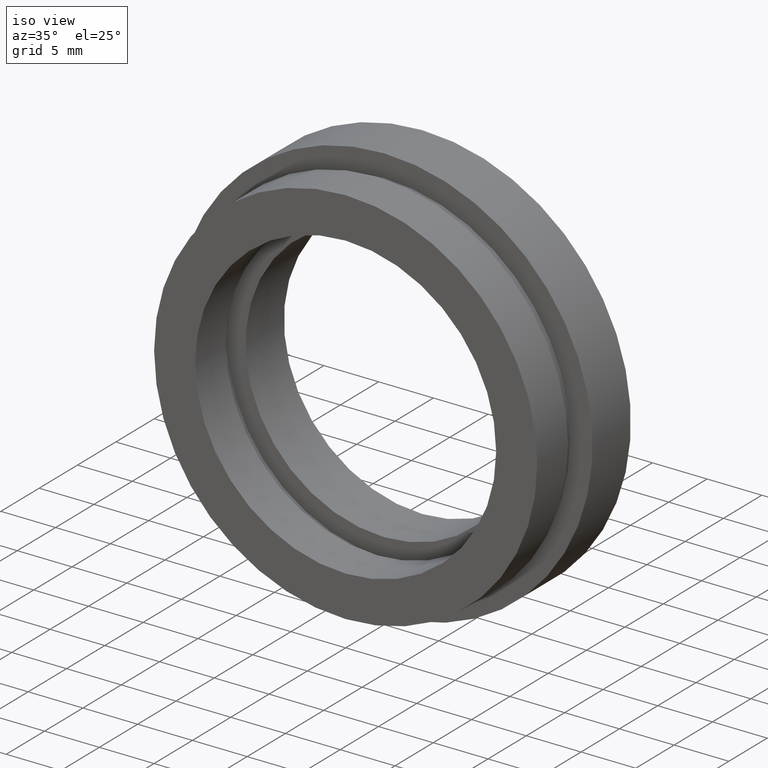
[diagram: clean part render]
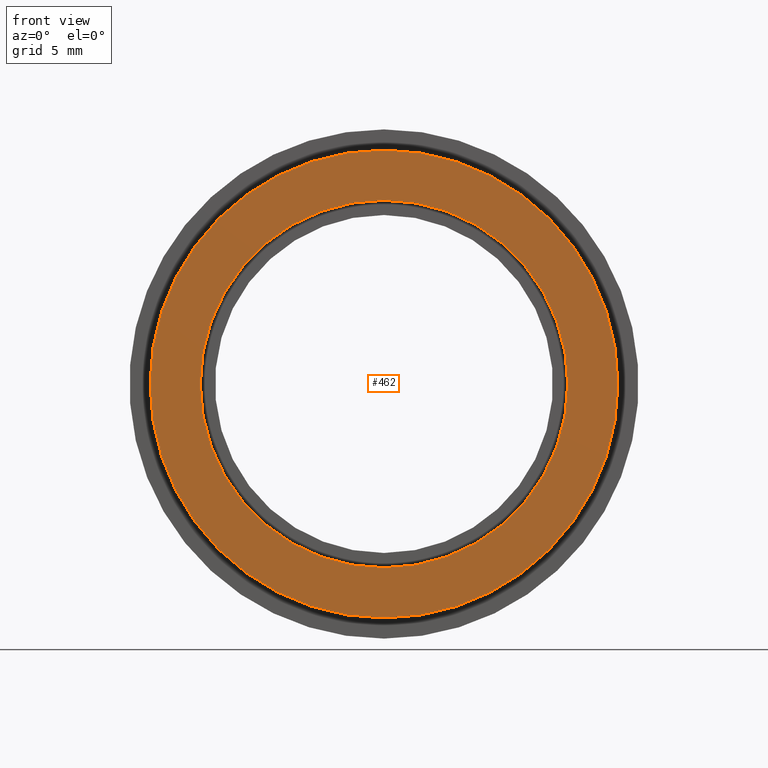
[diagram: tour spotlight — one face highlighted and labeled with its STEP entity id]
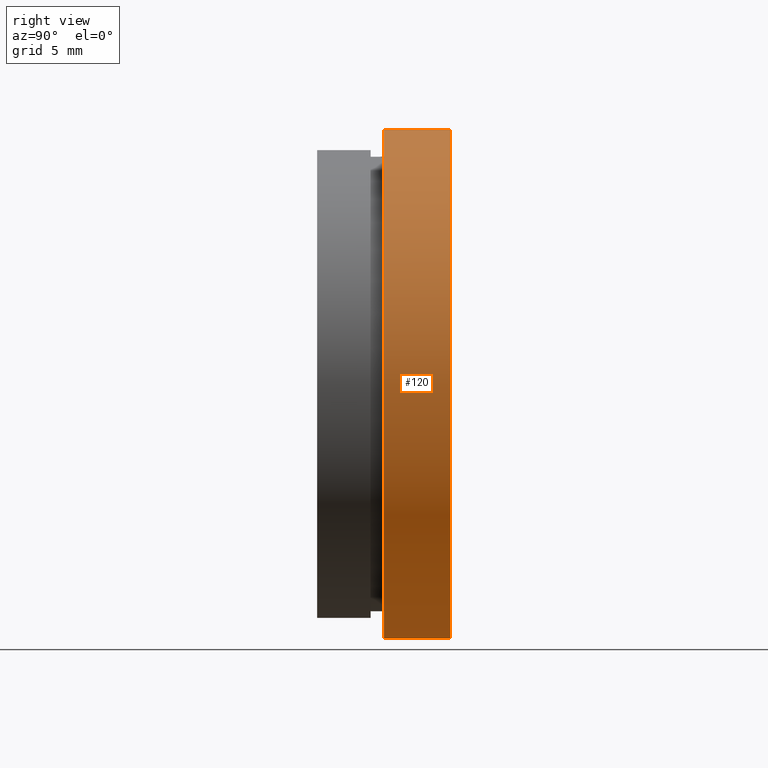
[diagram: tour spotlight — one face highlighted and labeled with its STEP entity id]
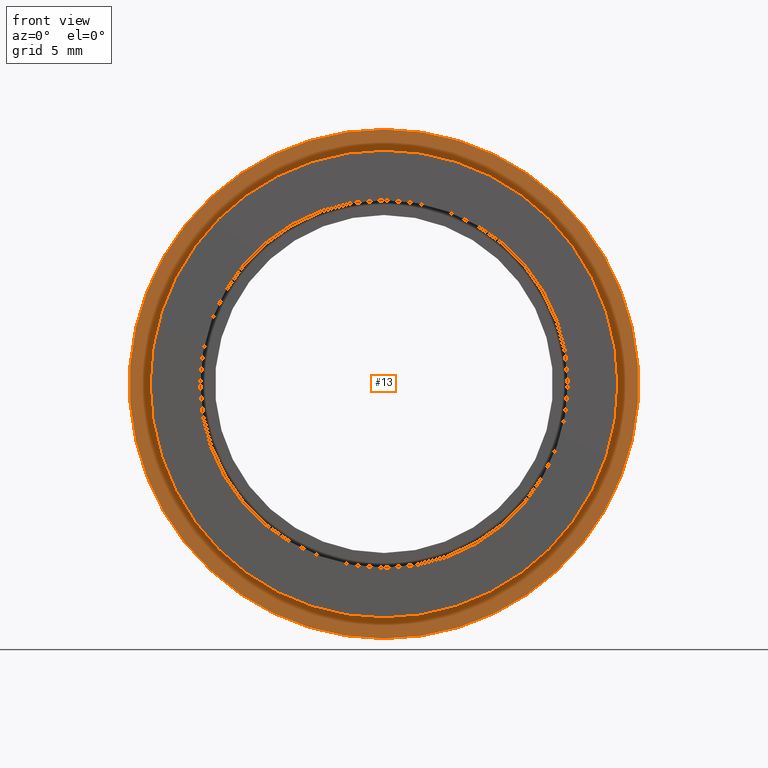
[diagram: tour spotlight — one face highlighted and labeled with its STEP entity id]
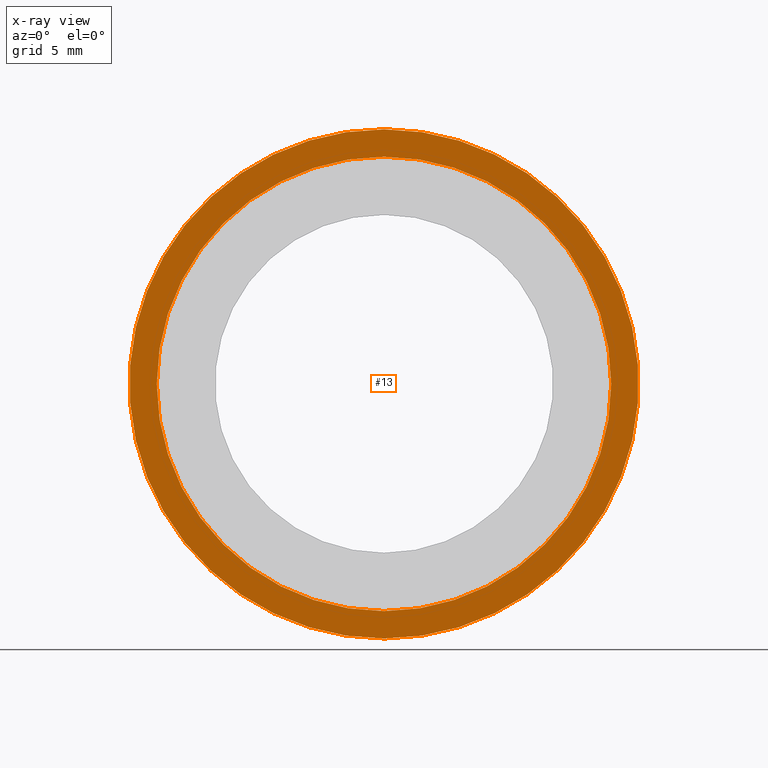
[diagram: x-ray of the same camera — body ghosted, this tour face saturated]
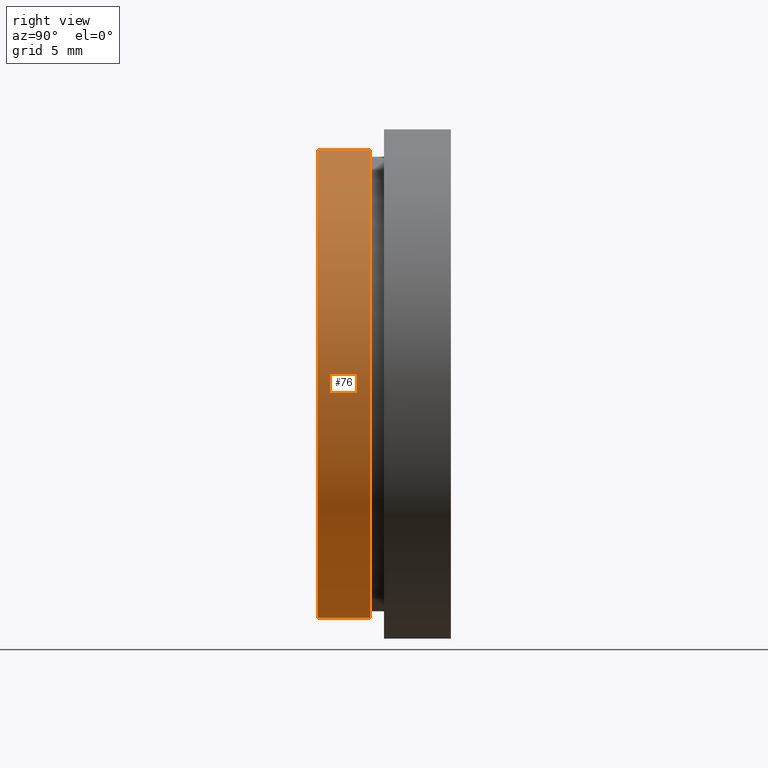
[diagram: tour spotlight — one face highlighted and labeled with its STEP entity id]
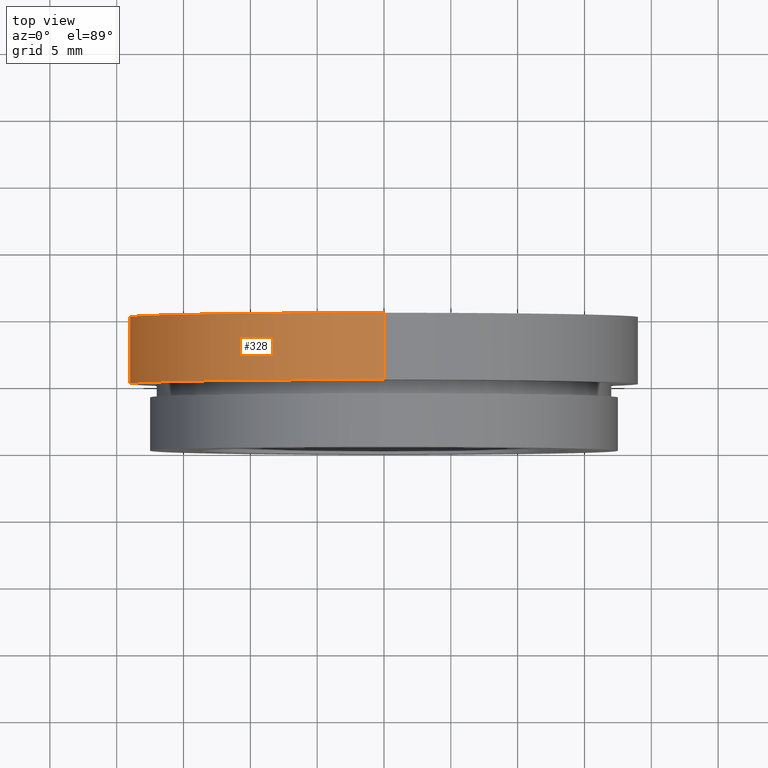
[diagram: tour spotlight — one face highlighted and labeled with its STEP entity id]
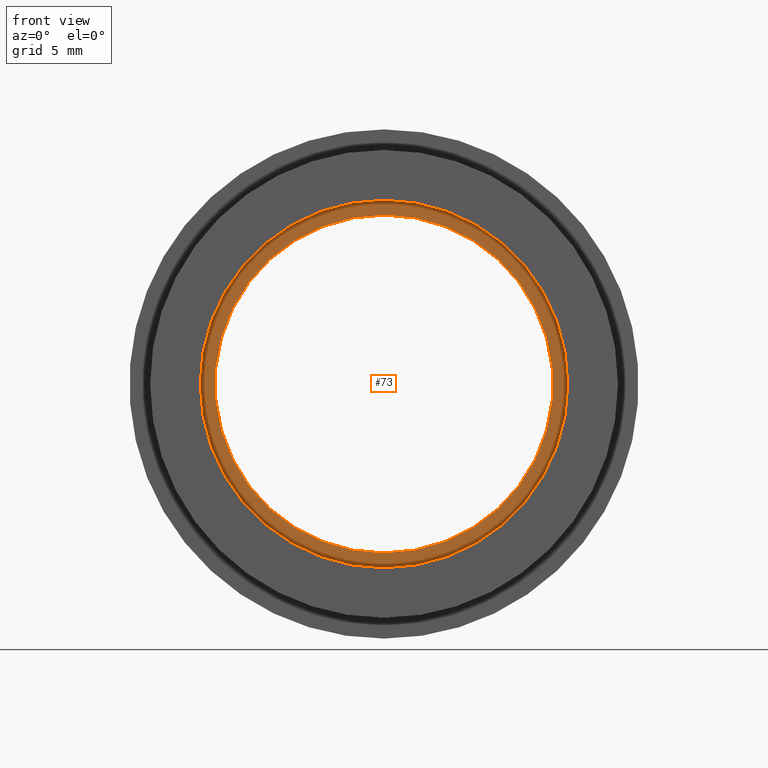
[diagram: tour spotlight — one face highlighted and labeled with its STEP entity id]
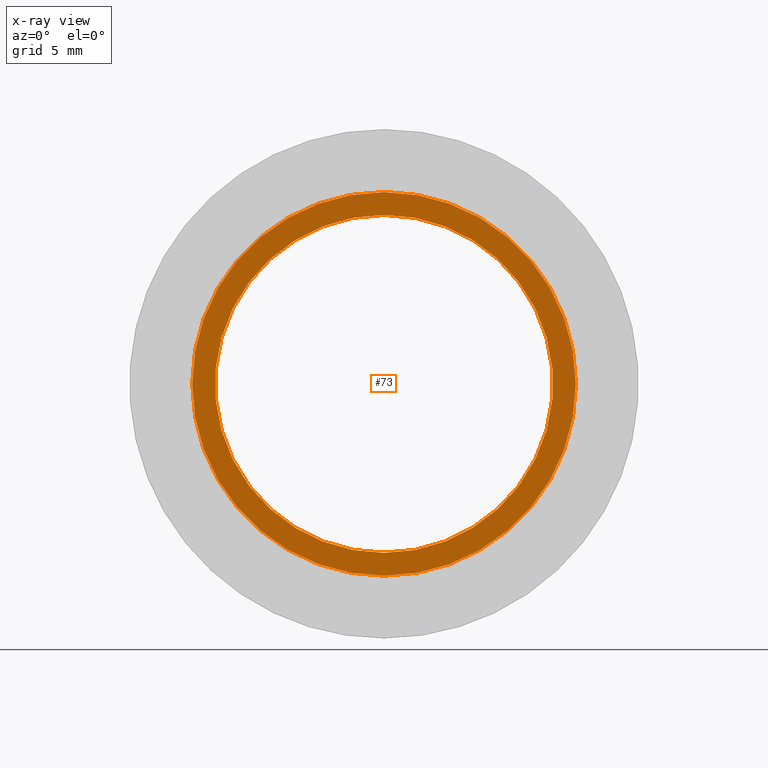
[diagram: x-ray of the same camera — body ghosted, this tour face saturated]
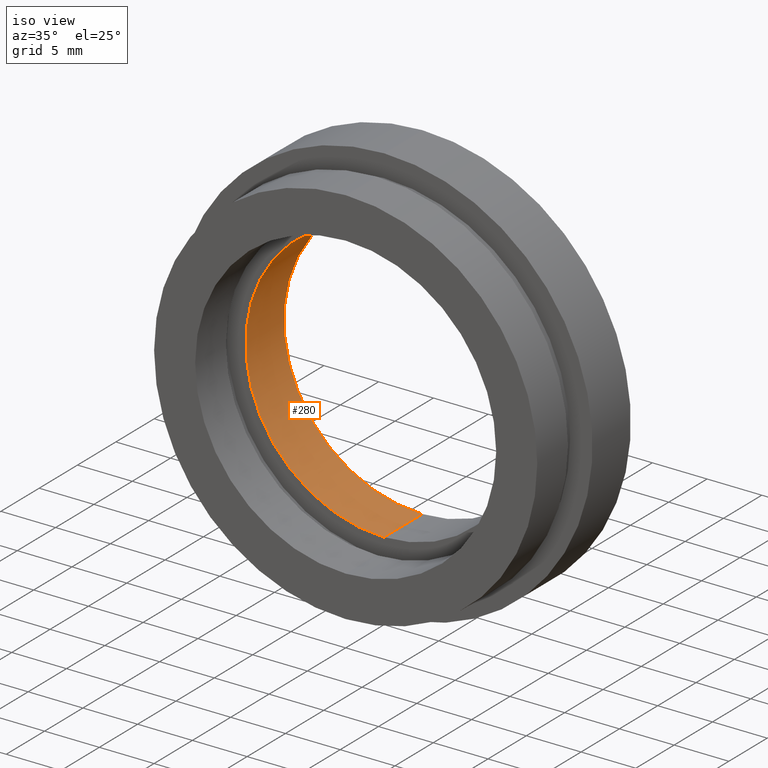
[diagram: tour spotlight — one face highlighted and labeled with its STEP entity id]
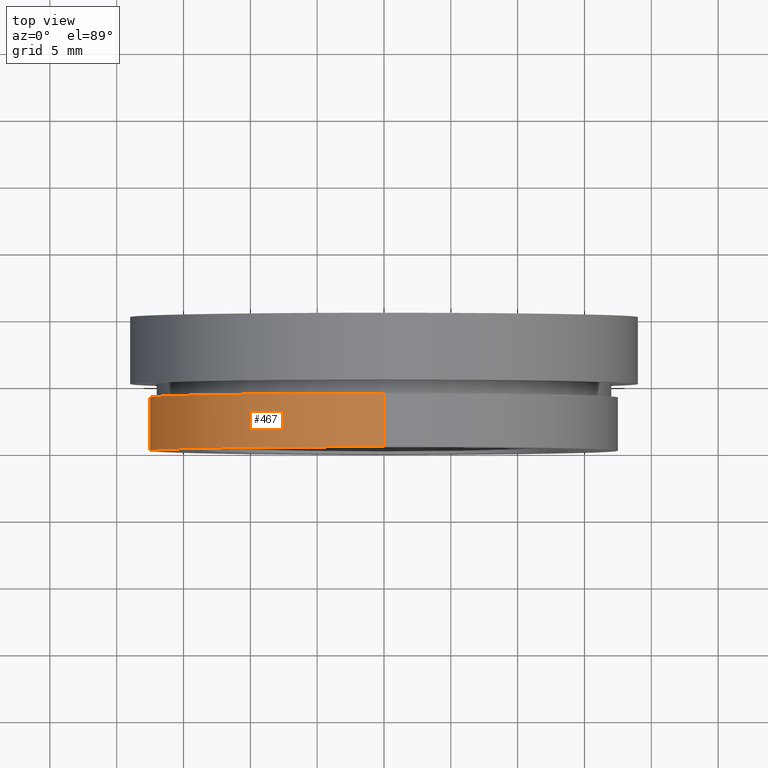
[diagram: tour spotlight — one face highlighted and labeled with its STEP entity id]
A machine part: a face-by-face anatomy tour. The part has 18 B-rep faces; the first image is the clean iso view, then the 8 largest visible faces are spotlighted one at a time (largest first), each with its STEP entity span.

Face 1 — front view, entity #462. In plain terms, the highlighted planar face has unit normal (-0, 1, 0).
Definition (entity closure, byte-faithful):
#48 = EDGE_CURVE ( 'NONE', #343, #203, #419, .T. ) ;
#67 = CARTESIAN_POINT ( 'NONE',  ( 0.0000000000000000000, -1.734723475976807100E-015, 0.0000000000000000000 ) ) ;
#68 = DIRECTION ( 'NONE',  ( 0.0000000000000000000, 0.0000000000000000000, 1.000000000000000000 ) ) ;
#69 = CARTESIAN_POINT ( 'NONE',  ( 0.0000000000000000000, 0.0000000000000000000, 0.0000000000000000000 ) ) ;
#92 = CARTESIAN_POINT ( 'NONE',  ( 0.0000000000000000000, -1.734723475976807100E-015, 13.75000000000000000 ) ) ;
#97 = FACE_BOUND ( 'NONE', #320, .T. ) ;
#118 = EDGE_LOOP ( 'NONE', ( #378, #192 ) ) ;
#129 = AXIS2_PLACEMENT_3D ( 'NONE', #160, #493, #208 ) ;
#142 = VERTEX_POINT ( 'NONE', #309 ) ;
#150 = EDGE_CURVE ( 'NONE', #142, #157, #471, .T. ) ;
#157 = VERTEX_POINT ( 'NONE', #601 ) ;
#160 = CARTESIAN_POINT ( 'NONE',  ( 17.50000000000000000, -4.439344646909156000E-016, 0.0000000000000000000 ) ) ;
#190 = DIRECTION ( 'NONE',  ( -0.0000000000000000000, 1.000000000000000000, -0.0000000000000000000 ) ) ;
#192 = ORIENTED_EDGE ( 'NONE', *, *, #248, .F. ) ;
#203 = VERTEX_POINT ( 'NONE', #92 ) ;
#208 = DIRECTION ( 'NONE',  ( 0.0000000000000000000, 0.0000000000000000000, 1.000000000000000000 ) ) ;
#248 = EDGE_CURVE ( 'NONE', #157, #142, #298, .T. ) ;
#249 = ORIENTED_EDGE ( 'NONE', *, *, #48, .T. ) ;
#256 = AXIS2_PLACEMENT_3D ( 'NONE', #69, #374, #68 ) ;
#258 = CARTESIAN_POINT ( 'NONE',  ( 0.0000000000000000000, 0.0000000000000000000, 0.0000000000000000000 ) ) ;
#265 = DIRECTION ( 'NONE',  ( -0.0000000000000000000, 1.000000000000000000, -0.0000000000000000000 ) ) ;
#270 = DIRECTION ( 'NONE',  ( 0.0000000000000000000, 0.0000000000000000000, 1.000000000000000000 ) ) ;
#298 = CIRCLE ( 'NONE', #388, 17.50000000000000000 ) ;
#309 = CARTESIAN_POINT ( 'NONE',  ( 0.0000000000000000000, 0.0000000000000000000, 17.50000000000000000 ) ) ;
#320 = EDGE_LOOP ( 'NONE', ( #326, #249 ) ) ;
#326 = ORIENTED_EDGE ( 'NONE', *, *, #585, .T. ) ;
#332 = CIRCLE ( 'NONE', #458, 13.75000000000000000 ) ;
#334 = DIRECTION ( 'NONE',  ( 0.0000000000000000000, 0.0000000000000000000, 1.000000000000000000 ) ) ;
#343 = VERTEX_POINT ( 'NONE', #486 ) ;
#374 = DIRECTION ( 'NONE',  ( -0.0000000000000000000, 1.000000000000000000, -0.0000000000000000000 ) ) ;
#378 = ORIENTED_EDGE ( 'NONE', *, *, #150, .F. ) ;
#388 = AXIS2_PLACEMENT_3D ( 'NONE', #258, #265, #270 ) ;
#419 = CIRCLE ( 'NONE', #527, 13.75000000000000000 ) ;
#441 = FACE_OUTER_BOUND ( 'NONE', #118, .T. ) ;
#451 = DIRECTION ( 'NONE',  ( -0.0000000000000000000, 1.000000000000000000, -0.0000000000000000000 ) ) ;
#458 = AXIS2_PLACEMENT_3D ( 'NONE', #67, #451, #334 ) ;
#462 = ADVANCED_FACE ( 'NONE', ( #441, #97 ), #476, .F. ) ;
#471 = CIRCLE ( 'NONE', #256, 17.50000000000000000 ) ;
#476 = PLANE ( 'NONE',  #129 ) ;
#486 = CARTESIAN_POINT ( 'NONE',  ( 1.683889348827610900E-015, -1.734723475976807100E-015, -13.75000000000000000 ) ) ;
#493 = DIRECTION ( 'NONE',  ( -0.0000000000000000000, 1.000000000000000000, 0.0000000000000000000 ) ) ;
#527 = AXIS2_PLACEMENT_3D ( 'NONE', #573, #190, #562 ) ;
#562 = DIRECTION ( 'NONE',  ( 0.0000000000000000000, 0.0000000000000000000, 1.000000000000000000 ) ) ;
#573 = CARTESIAN_POINT ( 'NONE',  ( 0.0000000000000000000, -1.734723475976807100E-015, 0.0000000000000000000 ) ) ;
#585 = EDGE_CURVE ( 'NONE', #203, #343, #332, .T. ) ;
#601 = CARTESIAN_POINT ( 'NONE',  ( 2.143131898507868200E-015, 0.0000000000000000000, -17.50000000000000000 ) ) ;

Face 2 — right view, entity #120. In plain terms, the highlighted cylindrical surface (partial cylindrical patch) has radius 19.05 mm, axis along (-0, 1, -0).
Definition (entity closure, byte-faithful):
#3 = ORIENTED_EDGE ( 'NONE', *, *, #417, .T. ) ;
#32 = DIRECTION ( 'NONE',  ( -0.0000000000000000000, 1.000000000000000000, -0.0000000000000000000 ) ) ;
#37 = CARTESIAN_POINT ( 'NONE',  ( 0.0000000000000000000, 13.74468085106383300, 19.05000000000000400 ) ) ;
#39 = CARTESIAN_POINT ( 'NONE',  ( 2.332952152375708400E-015, 9.999999999999998200, -19.05000000000000400 ) ) ;
#60 = DIRECTION ( 'NONE',  ( 0.0000000000000000000, 0.0000000000000000000, 1.000000000000000000 ) ) ;
#62 = EDGE_LOOP ( 'NONE', ( #3, #165, #311, #126 ) ) ;
#77 = FACE_OUTER_BOUND ( 'NONE', #62, .T. ) ;
#88 = VERTEX_POINT ( 'NONE', #39 ) ;
#109 = DIRECTION ( 'NONE',  ( -0.0000000000000000000, 1.000000000000000000, -0.0000000000000000000 ) ) ;
#120 = ADVANCED_FACE ( 'NONE', ( #77 ), #323, .T. ) ;
#126 = ORIENTED_EDGE ( 'NONE', *, *, #341, .F. ) ;
#144 = VERTEX_POINT ( 'NONE', #255 ) ;
#165 = ORIENTED_EDGE ( 'NONE', *, *, #346, .T. ) ;
#198 = DIRECTION ( 'NONE',  ( -0.0000000000000000000, 1.000000000000000000, -0.0000000000000000000 ) ) ;
#229 = CIRCLE ( 'NONE', #408, 19.05000000000000400 ) ;
#254 = CARTESIAN_POINT ( 'NONE',  ( 0.0000000000000000000, 5.000000000000000900, 0.0000000000000000000 ) ) ;
#255 = CARTESIAN_POINT ( 'NONE',  ( 2.332952152375708400E-015, 5.000000000000000900, -19.05000000000000400 ) ) ;
#259 = DIRECTION ( 'NONE',  ( -0.0000000000000000000, 1.000000000000000000, -0.0000000000000000000 ) ) ;
#277 = VECTOR ( 'NONE', #259, 1000.000000000000000 ) ;
#311 = ORIENTED_EDGE ( 'NONE', *, *, #551, .F. ) ;
#323 = CYLINDRICAL_SURFACE ( 'NONE', #556, 19.05000000000000400 ) ;
#341 = EDGE_CURVE ( 'NONE', #445, #429, #358, .T. ) ;
#346 = EDGE_CURVE ( 'NONE', #144, #88, #409, .T. ) ;
#350 = CARTESIAN_POINT ( 'NONE',  ( 2.332952152375708400E-015, 13.74468085106383300, -19.05000000000000400 ) ) ;
#358 = LINE ( 'NONE', #37, #372 ) ;
#372 = VECTOR ( 'NONE', #198, 1000.000000000000000 ) ;
#391 = CARTESIAN_POINT ( 'NONE',  ( 0.0000000000000000000, 9.999999999999998200, 0.0000000000000000000 ) ) ;
#408 = AXIS2_PLACEMENT_3D ( 'NONE', #254, #418, #468 ) ;
#409 = LINE ( 'NONE', #350, #277 ) ;
#417 = EDGE_CURVE ( 'NONE', #445, #144, #229, .T. ) ;
#418 = DIRECTION ( 'NONE',  ( -0.0000000000000000000, 1.000000000000000000, -0.0000000000000000000 ) ) ;
#425 = CARTESIAN_POINT ( 'NONE',  ( 0.0000000000000000000, 13.74468085106383300, 0.0000000000000000000 ) ) ;
#429 = VERTEX_POINT ( 'NONE', #502 ) ;
#445 = VERTEX_POINT ( 'NONE', #616 ) ;
#468 = DIRECTION ( 'NONE',  ( 0.0000000000000000000, 0.0000000000000000000, 1.000000000000000000 ) ) ;
#489 = DIRECTION ( 'NONE',  ( 0.0000000000000000000, 0.0000000000000000000, 1.000000000000000000 ) ) ;
#490 = AXIS2_PLACEMENT_3D ( 'NONE', #391, #109, #60 ) ;
#502 = CARTESIAN_POINT ( 'NONE',  ( 0.0000000000000000000, 9.999999999999998200, 19.05000000000000400 ) ) ;
#536 = CIRCLE ( 'NONE', #490, 19.05000000000000400 ) ;
#551 = EDGE_CURVE ( 'NONE', #429, #88, #536, .T. ) ;
#556 = AXIS2_PLACEMENT_3D ( 'NONE', #425, #32, #489 ) ;
#616 = CARTESIAN_POINT ( 'NONE',  ( 0.0000000000000000000, 5.000000000000000900, 19.05000000000000400 ) ) ;

Face 3 — front view, entity #13. An x-ray twin of the same camera follows (body ghosted, this face saturated) — the face is partly hidden behind the body. In plain terms, the highlighted planar face has unit normal (-0, 1, 0).
Definition (entity closure, byte-faithful):
#13 = ADVANCED_FACE ( 'NONE', ( #612, #594 ), #385, .F. ) ;
#19 = CARTESIAN_POINT ( 'NONE',  ( 0.0000000000000000000, 5.000000000000000900, 0.0000000000000000000 ) ) ;
#22 = DIRECTION ( 'NONE',  ( 0.0000000000000000000, 0.0000000000000000000, 1.000000000000000000 ) ) ;
#33 = VERTEX_POINT ( 'NONE', #484 ) ;
#52 = AXIS2_PLACEMENT_3D ( 'NONE', #19, #522, #22 ) ;
#82 = EDGE_LOOP ( 'NONE', ( #456, #415 ) ) ;
#93 = AXIS2_PLACEMENT_3D ( 'NONE', #567, #121, #613 ) ;
#102 = EDGE_CURVE ( 'NONE', #188, #33, #200, .T. ) ;
#121 = DIRECTION ( 'NONE',  ( -0.0000000000000000000, 1.000000000000000000, -0.0000000000000000000 ) ) ;
#144 = VERTEX_POINT ( 'NONE', #255 ) ;
#149 = ORIENTED_EDGE ( 'NONE', *, *, #102, .T. ) ;
#188 = VERTEX_POINT ( 'NONE', #274 ) ;
#191 = DIRECTION ( 'NONE',  ( -0.0000000000000000000, 1.000000000000000000, 0.0000000000000000000 ) ) ;
#200 = CIRCLE ( 'NONE', #52, 17.00000000000000000 ) ;
#205 = AXIS2_PLACEMENT_3D ( 'NONE', #495, #191, #473 ) ;
#213 = ORIENTED_EDGE ( 'NONE', *, *, #251, .T. ) ;
#229 = CIRCLE ( 'NONE', #408, 19.05000000000000400 ) ;
#251 = EDGE_CURVE ( 'NONE', #33, #188, #611, .T. ) ;
#254 = CARTESIAN_POINT ( 'NONE',  ( 0.0000000000000000000, 5.000000000000000900, 0.0000000000000000000 ) ) ;
#255 = CARTESIAN_POINT ( 'NONE',  ( 2.332952152375708400E-015, 5.000000000000000900, -19.05000000000000400 ) ) ;
#274 = CARTESIAN_POINT ( 'NONE',  ( 2.081899558550500300E-015, 5.000000000000000900, -17.00000000000000000 ) ) ;
#296 = EDGE_LOOP ( 'NONE', ( #213, #149 ) ) ;
#297 = DIRECTION ( 'NONE',  ( -0.0000000000000000000, 1.000000000000000000, -0.0000000000000000000 ) ) ;
#312 = EDGE_CURVE ( 'NONE', #144, #445, #506, .T. ) ;
#385 = PLANE ( 'NONE',  #205 ) ;
#403 = CARTESIAN_POINT ( 'NONE',  ( 0.0000000000000000000, 5.000000000000000900, 0.0000000000000000000 ) ) ;
#408 = AXIS2_PLACEMENT_3D ( 'NONE', #254, #418, #468 ) ;
#415 = ORIENTED_EDGE ( 'NONE', *, *, #312, .F. ) ;
#417 = EDGE_CURVE ( 'NONE', #445, #144, #229, .T. ) ;
#418 = DIRECTION ( 'NONE',  ( -0.0000000000000000000, 1.000000000000000000, -0.0000000000000000000 ) ) ;
#432 = AXIS2_PLACEMENT_3D ( 'NONE', #403, #297, #528 ) ;
#445 = VERTEX_POINT ( 'NONE', #616 ) ;
#456 = ORIENTED_EDGE ( 'NONE', *, *, #417, .F. ) ;
#468 = DIRECTION ( 'NONE',  ( 0.0000000000000000000, 0.0000000000000000000, 1.000000000000000000 ) ) ;
#473 = DIRECTION ( 'NONE',  ( 0.0000000000000000000, 0.0000000000000000000, 1.000000000000000000 ) ) ;
#484 = CARTESIAN_POINT ( 'NONE',  ( 0.0000000000000000000, 5.000000000000000900, 17.00000000000000000 ) ) ;
#495 = CARTESIAN_POINT ( 'NONE',  ( 19.05000000000000400, 5.000000000000000000, 0.0000000000000000000 ) ) ;
#506 = CIRCLE ( 'NONE', #93, 19.05000000000000400 ) ;
#522 = DIRECTION ( 'NONE',  ( -0.0000000000000000000, 1.000000000000000000, -0.0000000000000000000 ) ) ;
#528 = DIRECTION ( 'NONE',  ( 0.0000000000000000000, 0.0000000000000000000, 1.000000000000000000 ) ) ;
#567 = CARTESIAN_POINT ( 'NONE',  ( 0.0000000000000000000, 5.000000000000000900, 0.0000000000000000000 ) ) ;
#594 = FACE_BOUND ( 'NONE', #296, .T. ) ;
#611 = CIRCLE ( 'NONE', #432, 17.00000000000000000 ) ;
#612 = FACE_OUTER_BOUND ( 'NONE', #82, .T. ) ;
#613 = DIRECTION ( 'NONE',  ( 0.0000000000000000000, 0.0000000000000000000, 1.000000000000000000 ) ) ;
#616 = CARTESIAN_POINT ( 'NONE',  ( 0.0000000000000000000, 5.000000000000000900, 19.05000000000000400 ) ) ;

Face 4 — right view, entity #76. In plain terms, the highlighted cylindrical surface (partial cylindrical patch) has radius 17.5 mm, axis along (-0, 1, -0).
Definition (entity closure, byte-faithful):
#4 = EDGE_CURVE ( 'NONE', #142, #464, #544, .T. ) ;
#23 = ORIENTED_EDGE ( 'NONE', *, *, #577, .T. ) ;
#34 = AXIS2_PLACEMENT_3D ( 'NONE', #189, #366, #412 ) ;
#51 = CIRCLE ( 'NONE', #446, 17.50000000000000000 ) ;
#68 = DIRECTION ( 'NONE',  ( 0.0000000000000000000, 0.0000000000000000000, 1.000000000000000000 ) ) ;
#69 = CARTESIAN_POINT ( 'NONE',  ( 0.0000000000000000000, 0.0000000000000000000, 0.0000000000000000000 ) ) ;
#72 = ORIENTED_EDGE ( 'NONE', *, *, #4, .F. ) ;
#76 = ADVANCED_FACE ( 'NONE', ( #352 ), #325, .T. ) ;
#104 = CARTESIAN_POINT ( 'NONE',  ( 0.0000000000000000000, 4.000000000000000000, 0.0000000000000000000 ) ) ;
#107 = VERTEX_POINT ( 'NONE', #171 ) ;
#124 = CARTESIAN_POINT ( 'NONE',  ( 2.143131898507868200E-015, 13.74468085106383300, -17.50000000000000000 ) ) ;
#142 = VERTEX_POINT ( 'NONE', #309 ) ;
#150 = EDGE_CURVE ( 'NONE', #142, #157, #471, .T. ) ;
#157 = VERTEX_POINT ( 'NONE', #601 ) ;
#171 = CARTESIAN_POINT ( 'NONE',  ( 2.143131898507868200E-015, 4.000000000000000000, -17.50000000000000000 ) ) ;
#189 = CARTESIAN_POINT ( 'NONE',  ( 0.0000000000000000000, 13.74468085106383300, 0.0000000000000000000 ) ) ;
#194 = VECTOR ( 'NONE', #599, 1000.000000000000000 ) ;
#218 = ORIENTED_EDGE ( 'NONE', *, *, #150, .T. ) ;
#233 = ORIENTED_EDGE ( 'NONE', *, *, #523, .F. ) ;
#235 = DIRECTION ( 'NONE',  ( 0.0000000000000000000, 0.0000000000000000000, 1.000000000000000000 ) ) ;
#256 = AXIS2_PLACEMENT_3D ( 'NONE', #69, #374, #68 ) ;
#293 = CARTESIAN_POINT ( 'NONE',  ( 0.0000000000000000000, 13.74468085106383300, 17.50000000000000000 ) ) ;
#309 = CARTESIAN_POINT ( 'NONE',  ( 0.0000000000000000000, 0.0000000000000000000, 17.50000000000000000 ) ) ;
#325 = CYLINDRICAL_SURFACE ( 'NONE', #34, 17.50000000000000000 ) ;
#352 = FACE_OUTER_BOUND ( 'NONE', #380, .T. ) ;
#366 = DIRECTION ( 'NONE',  ( -0.0000000000000000000, 1.000000000000000000, -0.0000000000000000000 ) ) ;
#374 = DIRECTION ( 'NONE',  ( -0.0000000000000000000, 1.000000000000000000, -0.0000000000000000000 ) ) ;
#380 = EDGE_LOOP ( 'NONE', ( #218, #23, #233, #72 ) ) ;
#395 = DIRECTION ( 'NONE',  ( -0.0000000000000000000, 1.000000000000000000, -0.0000000000000000000 ) ) ;
#412 = DIRECTION ( 'NONE',  ( 0.0000000000000000000, 0.0000000000000000000, 1.000000000000000000 ) ) ;
#439 = CARTESIAN_POINT ( 'NONE',  ( 0.0000000000000000000, 4.000000000000000000, 17.50000000000000000 ) ) ;
#446 = AXIS2_PLACEMENT_3D ( 'NONE', #104, #474, #235 ) ;
#464 = VERTEX_POINT ( 'NONE', #439 ) ;
#471 = CIRCLE ( 'NONE', #256, 17.50000000000000000 ) ;
#474 = DIRECTION ( 'NONE',  ( -0.0000000000000000000, 1.000000000000000000, -0.0000000000000000000 ) ) ;
#515 = LINE ( 'NONE', #124, #524 ) ;
#523 = EDGE_CURVE ( 'NONE', #464, #107, #51, .T. ) ;
#524 = VECTOR ( 'NONE', #395, 1000.000000000000000 ) ;
#544 = LINE ( 'NONE', #293, #194 ) ;
#577 = EDGE_CURVE ( 'NONE', #157, #107, #515, .T. ) ;
#599 = DIRECTION ( 'NONE',  ( -0.0000000000000000000, 1.000000000000000000, -0.0000000000000000000 ) ) ;
#601 = CARTESIAN_POINT ( 'NONE',  ( 2.143131898507868200E-015, 0.0000000000000000000, -17.50000000000000000 ) ) ;

Face 5 — top view, entity #328. In plain terms, the highlighted cylindrical surface (partial cylindrical patch) has radius 19.05 mm, axis along (-0, 1, -0).
Definition (entity closure, byte-faithful):
#17 = EDGE_CURVE ( 'NONE', #88, #429, #117, .T. ) ;
#35 = DIRECTION ( 'NONE',  ( -0.0000000000000000000, 1.000000000000000000, -0.0000000000000000000 ) ) ;
#37 = CARTESIAN_POINT ( 'NONE',  ( 0.0000000000000000000, 13.74468085106383300, 19.05000000000000400 ) ) ;
#38 = DIRECTION ( 'NONE',  ( 0.0000000000000000000, 0.0000000000000000000, 1.000000000000000000 ) ) ;
#39 = CARTESIAN_POINT ( 'NONE',  ( 2.332952152375708400E-015, 9.999999999999998200, -19.05000000000000400 ) ) ;
#59 = CARTESIAN_POINT ( 'NONE',  ( 0.0000000000000000000, 9.999999999999998200, 0.0000000000000000000 ) ) ;
#88 = VERTEX_POINT ( 'NONE', #39 ) ;
#93 = AXIS2_PLACEMENT_3D ( 'NONE', #567, #121, #613 ) ;
#94 = DIRECTION ( 'NONE',  ( 0.0000000000000000000, 0.0000000000000000000, 1.000000000000000000 ) ) ;
#117 = CIRCLE ( 'NONE', #139, 19.05000000000000400 ) ;
#121 = DIRECTION ( 'NONE',  ( -0.0000000000000000000, 1.000000000000000000, -0.0000000000000000000 ) ) ;
#139 = AXIS2_PLACEMENT_3D ( 'NONE', #59, #35, #38 ) ;
#144 = VERTEX_POINT ( 'NONE', #255 ) ;
#198 = DIRECTION ( 'NONE',  ( -0.0000000000000000000, 1.000000000000000000, -0.0000000000000000000 ) ) ;
#234 = ORIENTED_EDGE ( 'NONE', *, *, #312, .T. ) ;
#255 = CARTESIAN_POINT ( 'NONE',  ( 2.332952152375708400E-015, 5.000000000000000900, -19.05000000000000400 ) ) ;
#259 = DIRECTION ( 'NONE',  ( -0.0000000000000000000, 1.000000000000000000, -0.0000000000000000000 ) ) ;
#264 = AXIS2_PLACEMENT_3D ( 'NONE', #575, #448, #94 ) ;
#277 = VECTOR ( 'NONE', #259, 1000.000000000000000 ) ;
#312 = EDGE_CURVE ( 'NONE', #144, #445, #506, .T. ) ;
#324 = CYLINDRICAL_SURFACE ( 'NONE', #264, 19.05000000000000400 ) ;
#328 = ADVANCED_FACE ( 'NONE', ( #424 ), #324, .T. ) ;
#341 = EDGE_CURVE ( 'NONE', #445, #429, #358, .T. ) ;
#346 = EDGE_CURVE ( 'NONE', #144, #88, #409, .T. ) ;
#348 = ORIENTED_EDGE ( 'NONE', *, *, #346, .F. ) ;
#350 = CARTESIAN_POINT ( 'NONE',  ( 2.332952152375708400E-015, 13.74468085106383300, -19.05000000000000400 ) ) ;
#358 = LINE ( 'NONE', #37, #372 ) ;
#369 = EDGE_LOOP ( 'NONE', ( #348, #234, #578, #582 ) ) ;
#372 = VECTOR ( 'NONE', #198, 1000.000000000000000 ) ;
#409 = LINE ( 'NONE', #350, #277 ) ;
#424 = FACE_OUTER_BOUND ( 'NONE', #369, .T. ) ;
#429 = VERTEX_POINT ( 'NONE', #502 ) ;
#445 = VERTEX_POINT ( 'NONE', #616 ) ;
#448 = DIRECTION ( 'NONE',  ( -0.0000000000000000000, 1.000000000000000000, -0.0000000000000000000 ) ) ;
#502 = CARTESIAN_POINT ( 'NONE',  ( 0.0000000000000000000, 9.999999999999998200, 19.05000000000000400 ) ) ;
#506 = CIRCLE ( 'NONE', #93, 19.05000000000000400 ) ;
#567 = CARTESIAN_POINT ( 'NONE',  ( 0.0000000000000000000, 5.000000000000000900, 0.0000000000000000000 ) ) ;
#575 = CARTESIAN_POINT ( 'NONE',  ( 0.0000000000000000000, 13.74468085106383300, 0.0000000000000000000 ) ) ;
#578 = ORIENTED_EDGE ( 'NONE', *, *, #341, .T. ) ;
#582 = ORIENTED_EDGE ( 'NONE', *, *, #17, .F. ) ;
#613 = DIRECTION ( 'NONE',  ( 0.0000000000000000000, 0.0000000000000000000, 1.000000000000000000 ) ) ;
#616 = CARTESIAN_POINT ( 'NONE',  ( 0.0000000000000000000, 5.000000000000000900, 19.05000000000000400 ) ) ;

Face 6 — front view, entity #73. An x-ray twin of the same camera follows (body ghosted, this face saturated) — the face is partly hidden behind the body. In plain terms, the highlighted planar face has unit normal (-0, 1, 0).
Definition (entity closure, byte-faithful):
#1 = CARTESIAN_POINT ( 'NONE',  ( 0.0000000000000000000, 5.000000000000000900, 0.0000000000000000000 ) ) ;
#5 = ORIENTED_EDGE ( 'NONE', *, *, #614, .T. ) ;
#30 = EDGE_CURVE ( 'NONE', #269, #167, #414, .T. ) ;
#73 = ADVANCED_FACE ( 'NONE', ( #163, #518 ), #480, .F. ) ;
#74 = DIRECTION ( 'NONE',  ( 0.0000000000000000000, 0.0000000000000000000, 1.000000000000000000 ) ) ;
#83 = CARTESIAN_POINT ( 'NONE',  ( 1.757368156776451600E-015, 4.999999999999999100, -14.35000000000000000 ) ) ;
#85 = CIRCLE ( 'NONE', #349, 12.64500000000000100 ) ;
#90 = VERTEX_POINT ( 'NONE', #442 ) ;
#101 = ORIENTED_EDGE ( 'NONE', *, *, #566, .F. ) ;
#125 = VERTEX_POINT ( 'NONE', #563 ) ;
#132 = CARTESIAN_POINT ( 'NONE',  ( 0.0000000000000000000, 4.999999999999999100, 0.0000000000000000000 ) ) ;
#148 = CARTESIAN_POINT ( 'NONE',  ( 0.0000000000000000000, 4.999999999999999100, 14.35000000000000000 ) ) ;
#163 = FACE_OUTER_BOUND ( 'NONE', #483, .T. ) ;
#167 = VERTEX_POINT ( 'NONE', #83 ) ;
#179 = AXIS2_PLACEMENT_3D ( 'NONE', #1, #525, #74 ) ;
#182 = EDGE_CURVE ( 'NONE', #125, #90, #85, .T. ) ;
#223 = DIRECTION ( 'NONE',  ( 0.0000000000000000000, 0.0000000000000000000, 1.000000000000000000 ) ) ;
#237 = AXIS2_PLACEMENT_3D ( 'NONE', #243, #597, #619 ) ;
#243 = CARTESIAN_POINT ( 'NONE',  ( 0.0000000000000000000, 4.999999999999999100, 0.0000000000000000000 ) ) ;
#244 = CARTESIAN_POINT ( 'NONE',  ( 0.0000000000000000000, 5.000000000000000900, 0.0000000000000000000 ) ) ;
#246 = DIRECTION ( 'NONE',  ( -0.0000000000000000000, 1.000000000000000000, 0.0000000000000000000 ) ) ;
#269 = VERTEX_POINT ( 'NONE', #148 ) ;
#349 = AXIS2_PLACEMENT_3D ( 'NONE', #244, #552, #550 ) ;
#379 = CARTESIAN_POINT ( 'NONE',  ( 14.35000000000000000, 4.999999999999999100, 0.0000000000000000000 ) ) ;
#414 = CIRCLE ( 'NONE', #237, 14.35000000000000000 ) ;
#430 = DIRECTION ( 'NONE',  ( -0.0000000000000000000, 1.000000000000000000, -0.0000000000000000000 ) ) ;
#442 = CARTESIAN_POINT ( 'NONE',  ( 1.548565877521828400E-015, 5.000000000000000900, -12.64500000000000100 ) ) ;
#457 = AXIS2_PLACEMENT_3D ( 'NONE', #379, #246, #592 ) ;
#480 = PLANE ( 'NONE',  #457 ) ;
#483 = EDGE_LOOP ( 'NONE', ( #533, #101 ) ) ;
#497 = AXIS2_PLACEMENT_3D ( 'NONE', #132, #430, #223 ) ;
#505 = CIRCLE ( 'NONE', #497, 14.35000000000000000 ) ;
#518 = FACE_BOUND ( 'NONE', #584, .T. ) ;
#525 = DIRECTION ( 'NONE',  ( -0.0000000000000000000, 1.000000000000000000, -0.0000000000000000000 ) ) ;
#532 = ORIENTED_EDGE ( 'NONE', *, *, #182, .T. ) ;
#533 = ORIENTED_EDGE ( 'NONE', *, *, #30, .F. ) ;
#550 = DIRECTION ( 'NONE',  ( 0.0000000000000000000, 0.0000000000000000000, 1.000000000000000000 ) ) ;
#552 = DIRECTION ( 'NONE',  ( -0.0000000000000000000, 1.000000000000000000, -0.0000000000000000000 ) ) ;
#561 = CIRCLE ( 'NONE', #179, 12.64500000000000100 ) ;
#563 = CARTESIAN_POINT ( 'NONE',  ( 0.0000000000000000000, 5.000000000000000900, 12.64500000000000100 ) ) ;
#566 = EDGE_CURVE ( 'NONE', #167, #269, #505, .T. ) ;
#584 = EDGE_LOOP ( 'NONE', ( #532, #5 ) ) ;
#592 = DIRECTION ( 'NONE',  ( 0.0000000000000000000, 0.0000000000000000000, 1.000000000000000000 ) ) ;
#597 = DIRECTION ( 'NONE',  ( -0.0000000000000000000, 1.000000000000000000, -0.0000000000000000000 ) ) ;
#614 = EDGE_CURVE ( 'NONE', #90, #125, #561, .T. ) ;
#619 = DIRECTION ( 'NONE',  ( 0.0000000000000000000, 0.0000000000000000000, 1.000000000000000000 ) ) ;

Face 7 — iso view, entity #280. In plain terms, the highlighted cylindrical surface (partial cylindrical patch) has radius 12.645 mm, axis along (-0, 1, -0).
Definition (entity closure, byte-faithful):
#1 = CARTESIAN_POINT ( 'NONE',  ( 0.0000000000000000000, 5.000000000000000900, 0.0000000000000000000 ) ) ;
#9 = VECTOR ( 'NONE', #187, 1000.000000000000000 ) ;
#42 = DIRECTION ( 'NONE',  ( 0.0000000000000000000, 0.0000000000000000000, 1.000000000000000000 ) ) ;
#71 = EDGE_CURVE ( 'NONE', #90, #609, #423, .T. ) ;
#74 = DIRECTION ( 'NONE',  ( 0.0000000000000000000, 0.0000000000000000000, 1.000000000000000000 ) ) ;
#90 = VERTEX_POINT ( 'NONE', #442 ) ;
#105 = DIRECTION ( 'NONE',  ( -0.0000000000000000000, 1.000000000000000000, -0.0000000000000000000 ) ) ;
#125 = VERTEX_POINT ( 'NONE', #563 ) ;
#135 = DIRECTION ( 'NONE',  ( -0.0000000000000000000, 1.000000000000000000, -0.0000000000000000000 ) ) ;
#141 = ORIENTED_EDGE ( 'NONE', *, *, #534, .T. ) ;
#147 = CARTESIAN_POINT ( 'NONE',  ( 0.0000000000000000000, 9.999999999999998200, 0.0000000000000000000 ) ) ;
#152 = DIRECTION ( 'NONE',  ( -0.0000000000000000000, 1.000000000000000000, -0.0000000000000000000 ) ) ;
#169 = AXIS2_PLACEMENT_3D ( 'NONE', #147, #152, #284 ) ;
#179 = AXIS2_PLACEMENT_3D ( 'NONE', #1, #525, #74 ) ;
#183 = CARTESIAN_POINT ( 'NONE',  ( 0.0000000000000000000, 13.74468085106383300, 0.0000000000000000000 ) ) ;
#187 = DIRECTION ( 'NONE',  ( -0.0000000000000000000, 1.000000000000000000, -0.0000000000000000000 ) ) ;
#260 = VERTEX_POINT ( 'NONE', #390 ) ;
#275 = AXIS2_PLACEMENT_3D ( 'NONE', #183, #135, #42 ) ;
#280 = ADVANCED_FACE ( 'NONE', ( #499 ), #455, .F. ) ;
#282 = ORIENTED_EDGE ( 'NONE', *, *, #472, .F. ) ;
#284 = DIRECTION ( 'NONE',  ( 0.0000000000000000000, 0.0000000000000000000, 1.000000000000000000 ) ) ;
#313 = CIRCLE ( 'NONE', #169, 12.64500000000000100 ) ;
#357 = ORIENTED_EDGE ( 'NONE', *, *, #71, .T. ) ;
#377 = CARTESIAN_POINT ( 'NONE',  ( 0.0000000000000000000, 13.74468085106383300, 12.64500000000000100 ) ) ;
#390 = CARTESIAN_POINT ( 'NONE',  ( 0.0000000000000000000, 9.999999999999998200, 12.64500000000000100 ) ) ;
#423 = LINE ( 'NONE', #558, #9 ) ;
#442 = CARTESIAN_POINT ( 'NONE',  ( 1.548565877521828400E-015, 5.000000000000000900, -12.64500000000000100 ) ) ;
#447 = ORIENTED_EDGE ( 'NONE', *, *, #614, .F. ) ;
#455 = CYLINDRICAL_SURFACE ( 'NONE', #275, 12.64500000000000100 ) ;
#472 = EDGE_CURVE ( 'NONE', #125, #260, #526, .T. ) ;
#479 = VECTOR ( 'NONE', #105, 1000.000000000000000 ) ;
#494 = EDGE_LOOP ( 'NONE', ( #447, #357, #141, #282 ) ) ;
#499 = FACE_OUTER_BOUND ( 'NONE', #494, .T. ) ;
#525 = DIRECTION ( 'NONE',  ( -0.0000000000000000000, 1.000000000000000000, -0.0000000000000000000 ) ) ;
#526 = LINE ( 'NONE', #377, #479 ) ;
#534 = EDGE_CURVE ( 'NONE', #609, #260, #313, .T. ) ;
#557 = CARTESIAN_POINT ( 'NONE',  ( 1.548565877521828400E-015, 9.999999999999998200, -12.64500000000000100 ) ) ;
#558 = CARTESIAN_POINT ( 'NONE',  ( 1.548565877521828400E-015, 13.74468085106383300, -12.64500000000000100 ) ) ;
#561 = CIRCLE ( 'NONE', #179, 12.64500000000000100 ) ;
#563 = CARTESIAN_POINT ( 'NONE',  ( 0.0000000000000000000, 5.000000000000000900, 12.64500000000000100 ) ) ;
#609 = VERTEX_POINT ( 'NONE', #557 ) ;
#614 = EDGE_CURVE ( 'NONE', #90, #125, #561, .T. ) ;

Face 8 — top view, entity #467. In plain terms, the highlighted cylindrical surface (partial cylindrical patch) has radius 17.5 mm, axis along (-0, 1, -0).
Definition (entity closure, byte-faithful):
#4 = EDGE_CURVE ( 'NONE', #142, #464, #544, .T. ) ;
#61 = CIRCLE ( 'NONE', #513, 17.50000000000000000 ) ;
#70 = EDGE_CURVE ( 'NONE', #107, #464, #61, .T. ) ;
#107 = VERTEX_POINT ( 'NONE', #171 ) ;
#113 = DIRECTION ( 'NONE',  ( 0.0000000000000000000, 0.0000000000000000000, 1.000000000000000000 ) ) ;
#122 = FACE_OUTER_BOUND ( 'NONE', #461, .T. ) ;
#124 = CARTESIAN_POINT ( 'NONE',  ( 2.143131898507868200E-015, 13.74468085106383300, -17.50000000000000000 ) ) ;
#142 = VERTEX_POINT ( 'NONE', #309 ) ;
#157 = VERTEX_POINT ( 'NONE', #601 ) ;
#171 = CARTESIAN_POINT ( 'NONE',  ( 2.143131898507868200E-015, 4.000000000000000000, -17.50000000000000000 ) ) ;
#194 = VECTOR ( 'NONE', #599, 1000.000000000000000 ) ;
#224 = ORIENTED_EDGE ( 'NONE', *, *, #4, .T. ) ;
#248 = EDGE_CURVE ( 'NONE', #157, #142, #298, .T. ) ;
#258 = CARTESIAN_POINT ( 'NONE',  ( 0.0000000000000000000, 0.0000000000000000000, 0.0000000000000000000 ) ) ;
#265 = DIRECTION ( 'NONE',  ( -0.0000000000000000000, 1.000000000000000000, -0.0000000000000000000 ) ) ;
#270 = DIRECTION ( 'NONE',  ( 0.0000000000000000000, 0.0000000000000000000, 1.000000000000000000 ) ) ;
#293 = CARTESIAN_POINT ( 'NONE',  ( 0.0000000000000000000, 13.74468085106383300, 17.50000000000000000 ) ) ;
#298 = CIRCLE ( 'NONE', #388, 17.50000000000000000 ) ;
#309 = CARTESIAN_POINT ( 'NONE',  ( 0.0000000000000000000, 0.0000000000000000000, 17.50000000000000000 ) ) ;
#315 = DIRECTION ( 'NONE',  ( -0.0000000000000000000, 1.000000000000000000, -0.0000000000000000000 ) ) ;
#351 = DIRECTION ( 'NONE',  ( -0.0000000000000000000, 1.000000000000000000, -0.0000000000000000000 ) ) ;
#355 = DIRECTION ( 'NONE',  ( 0.0000000000000000000, 0.0000000000000000000, 1.000000000000000000 ) ) ;
#362 = ORIENTED_EDGE ( 'NONE', *, *, #577, .F. ) ;
#388 = AXIS2_PLACEMENT_3D ( 'NONE', #258, #265, #270 ) ;
#395 = DIRECTION ( 'NONE',  ( -0.0000000000000000000, 1.000000000000000000, -0.0000000000000000000 ) ) ;
#401 = AXIS2_PLACEMENT_3D ( 'NONE', #435, #315, #113 ) ;
#435 = CARTESIAN_POINT ( 'NONE',  ( 0.0000000000000000000, 13.74468085106383300, 0.0000000000000000000 ) ) ;
#439 = CARTESIAN_POINT ( 'NONE',  ( 0.0000000000000000000, 4.000000000000000000, 17.50000000000000000 ) ) ;
#449 = CYLINDRICAL_SURFACE ( 'NONE', #401, 17.50000000000000000 ) ;
#461 = EDGE_LOOP ( 'NONE', ( #362, #621, #224, #576 ) ) ;
#464 = VERTEX_POINT ( 'NONE', #439 ) ;
#467 = ADVANCED_FACE ( 'NONE', ( #122 ), #449, .T. ) ;
#507 = CARTESIAN_POINT ( 'NONE',  ( 0.0000000000000000000, 4.000000000000000000, 0.0000000000000000000 ) ) ;
#513 = AXIS2_PLACEMENT_3D ( 'NONE', #507, #351, #355 ) ;
#515 = LINE ( 'NONE', #124, #524 ) ;
#524 = VECTOR ( 'NONE', #395, 1000.000000000000000 ) ;
#544 = LINE ( 'NONE', #293, #194 ) ;
#576 = ORIENTED_EDGE ( 'NONE', *, *, #70, .F. ) ;
#577 = EDGE_CURVE ( 'NONE', #157, #107, #515, .T. ) ;
#599 = DIRECTION ( 'NONE',  ( -0.0000000000000000000, 1.000000000000000000, -0.0000000000000000000 ) ) ;
#601 = CARTESIAN_POINT ( 'NONE',  ( 2.143131898507868200E-015, 0.0000000000000000000, -17.50000000000000000 ) ) ;
#621 = ORIENTED_EDGE ( 'NONE', *, *, #248, .T. ) ;